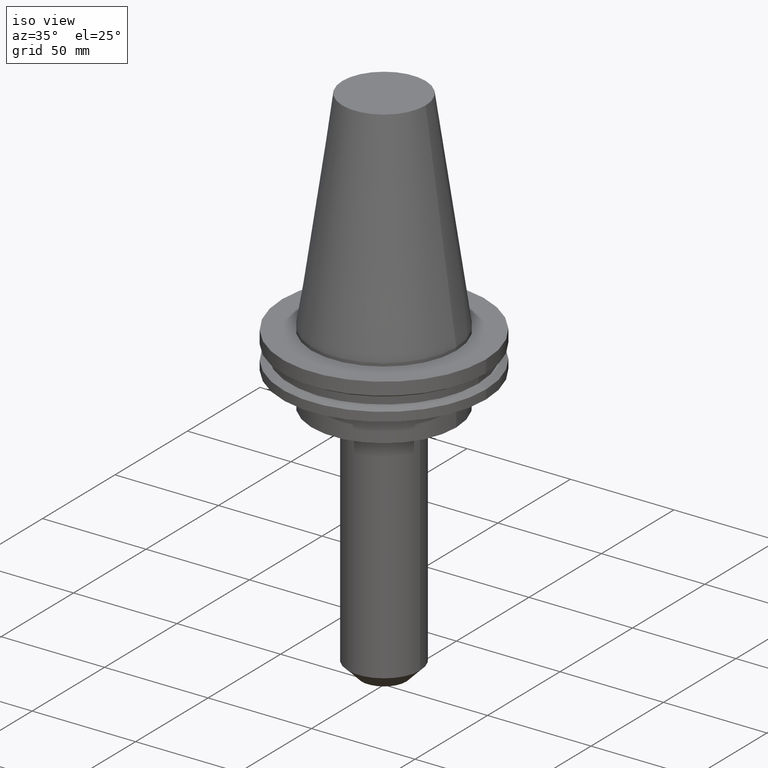
[diagram: clean part render]
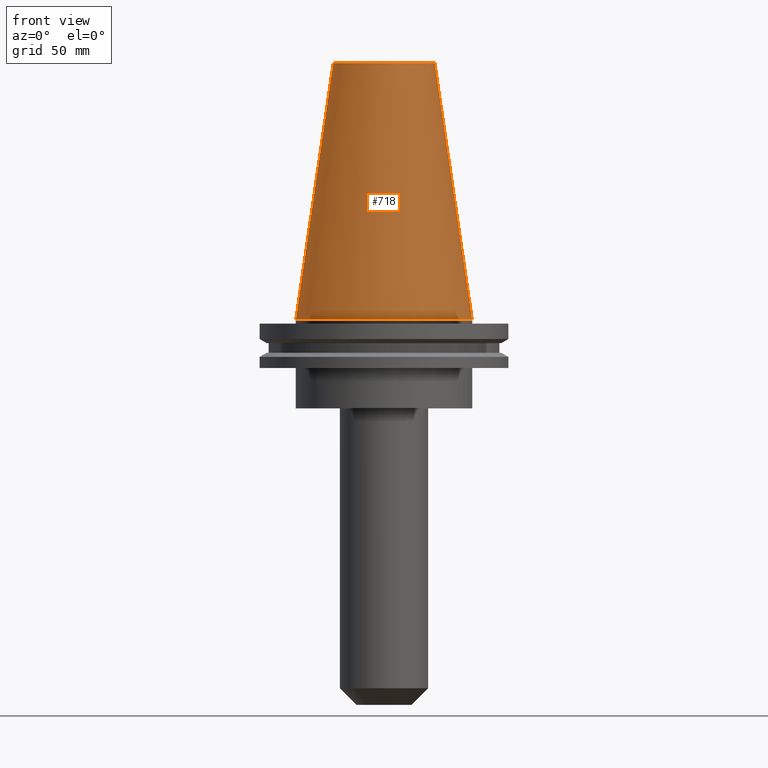
[diagram: tour spotlight — one face highlighted and labeled with its STEP entity id]
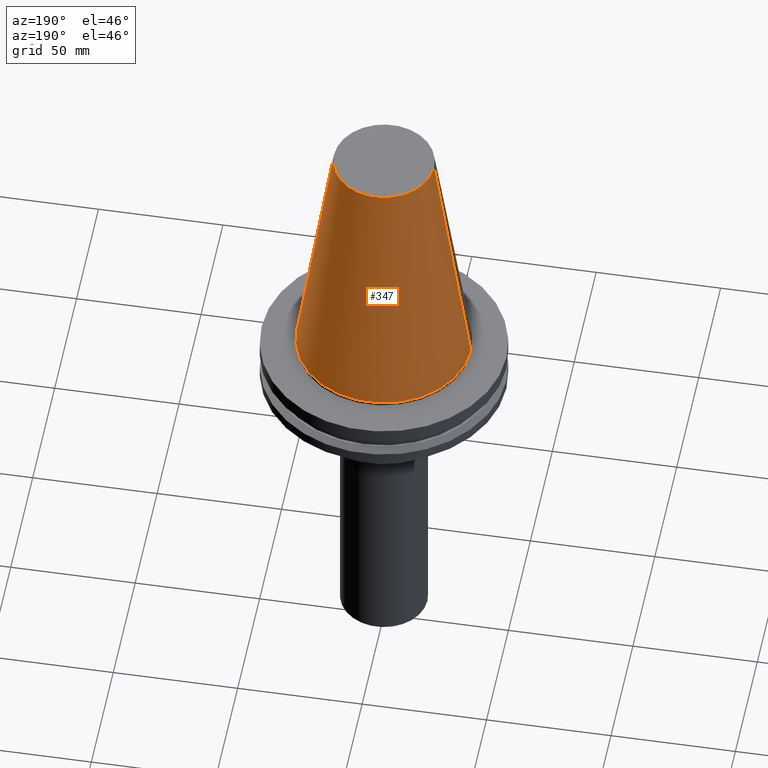
[diagram: tour spotlight — one face highlighted and labeled with its STEP entity id]
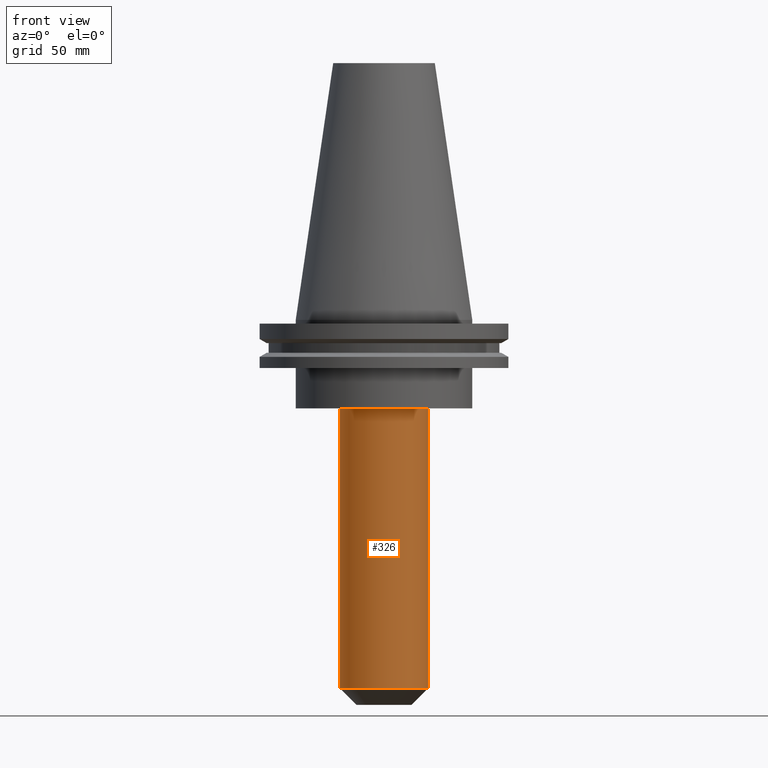
[diagram: tour spotlight — one face highlighted and labeled with its STEP entity id]
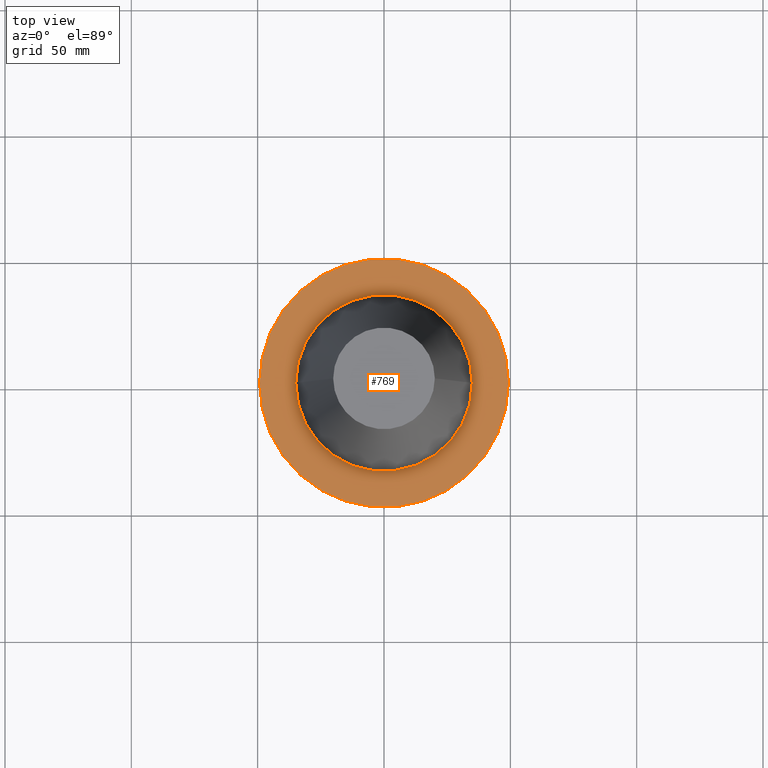
[diagram: tour spotlight — one face highlighted and labeled with its STEP entity id]
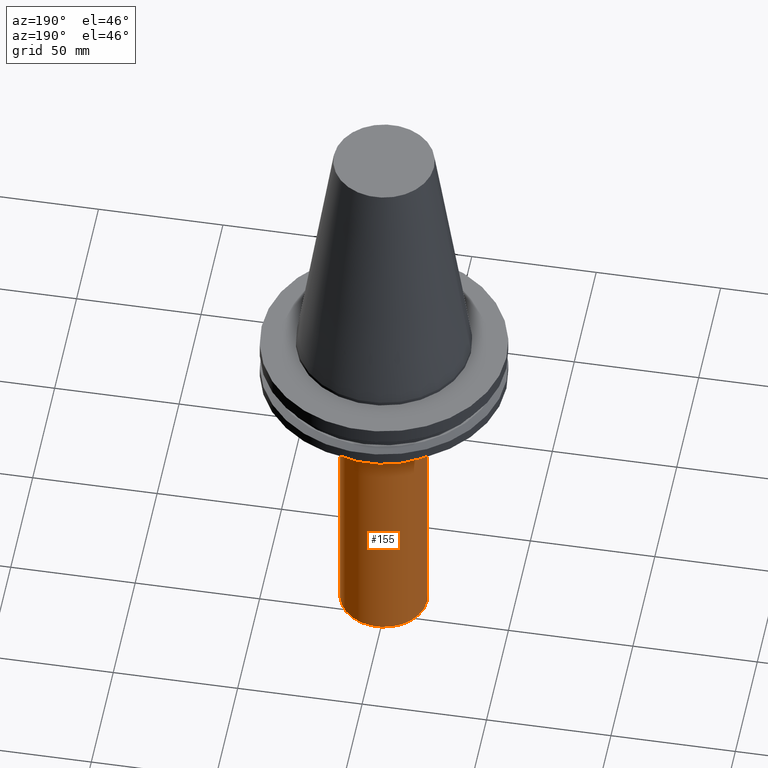
[diagram: tour spotlight — one face highlighted and labeled with its STEP entity id]
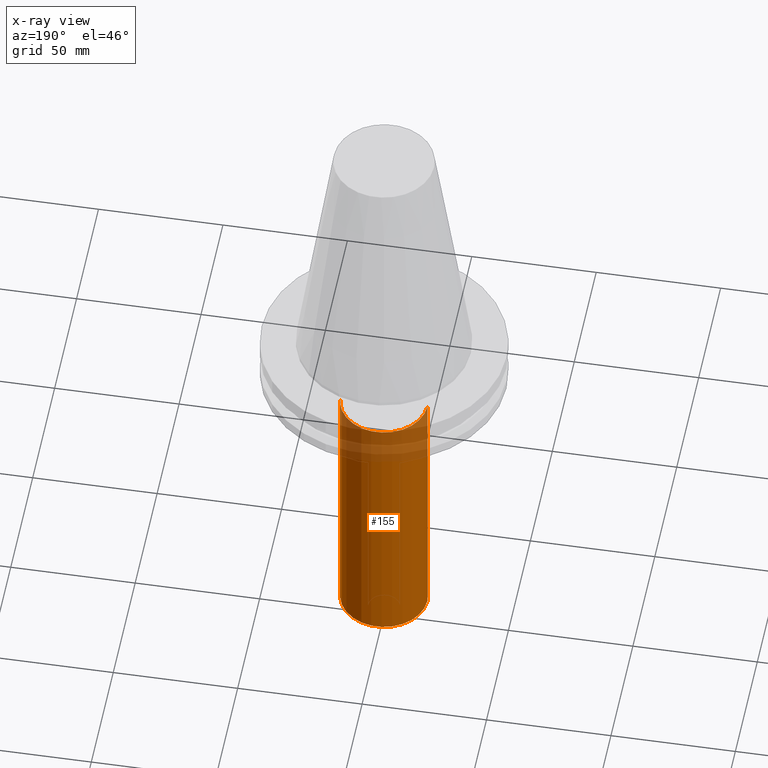
[diagram: x-ray of the same camera — body ghosted, this tour face saturated]
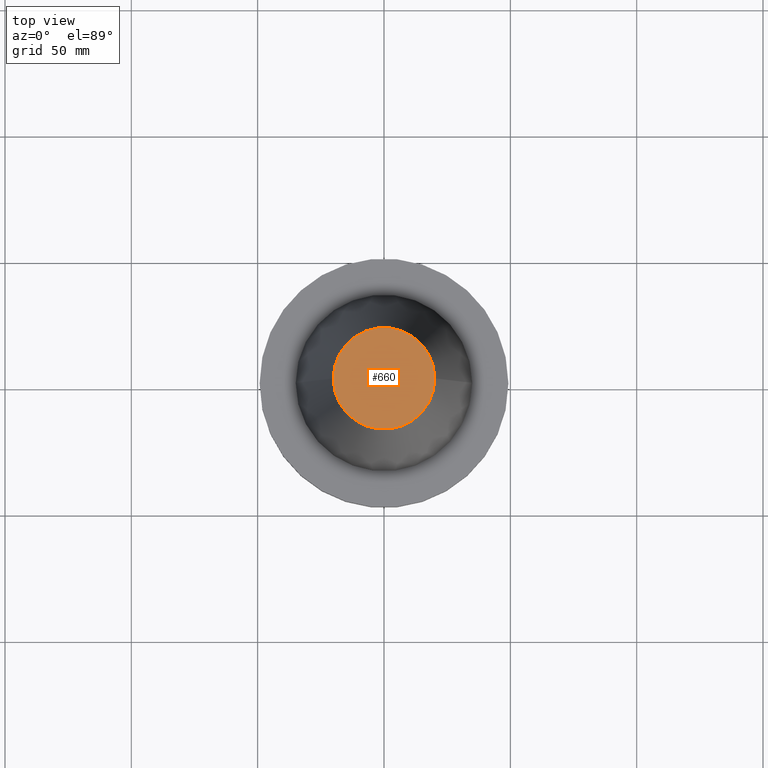
[diagram: tour spotlight — one face highlighted and labeled with its STEP entity id]
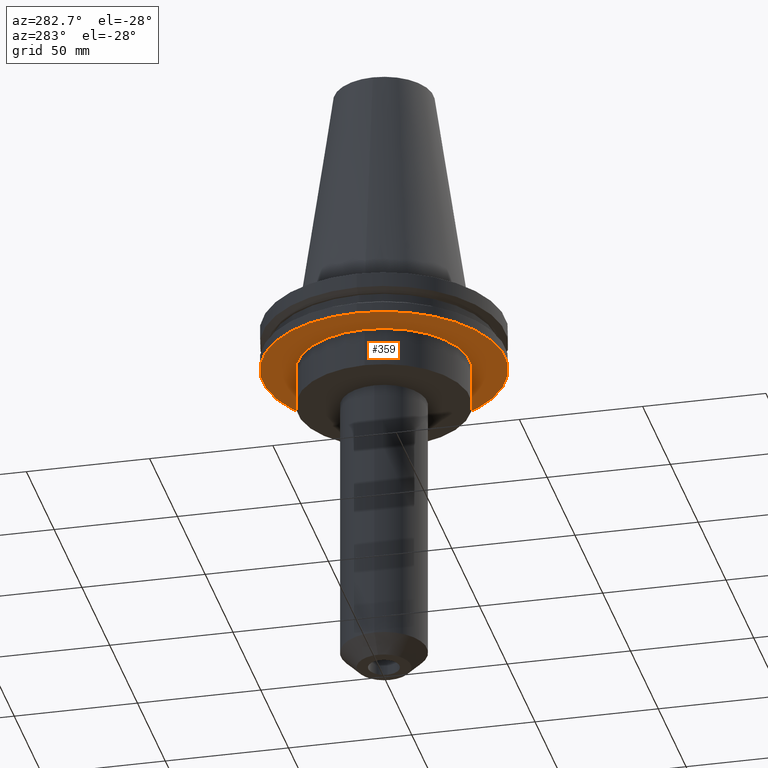
[diagram: tour spotlight — one face highlighted and labeled with its STEP entity id]
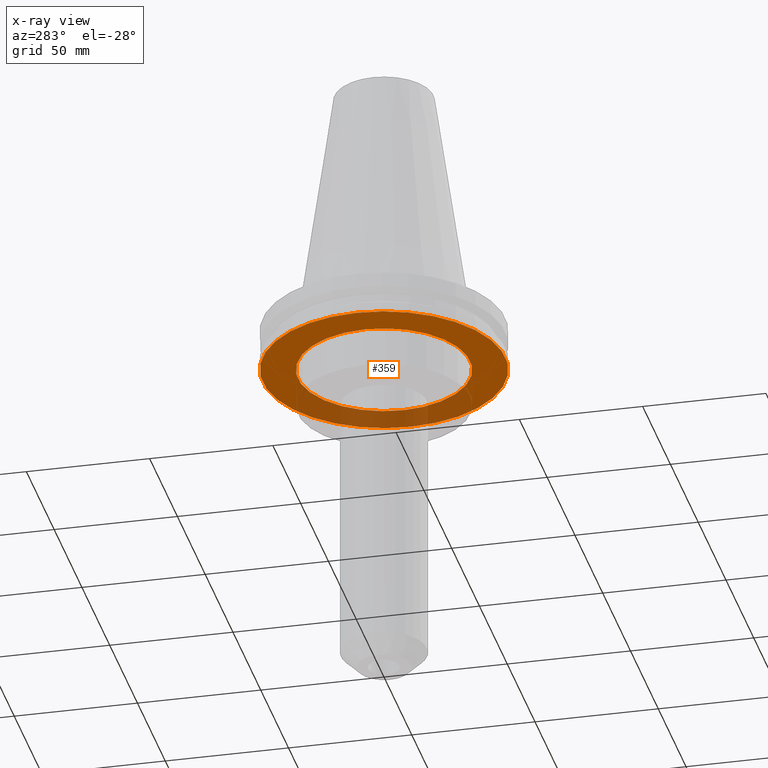
[diagram: x-ray of the same camera — body ghosted, this tour face saturated]
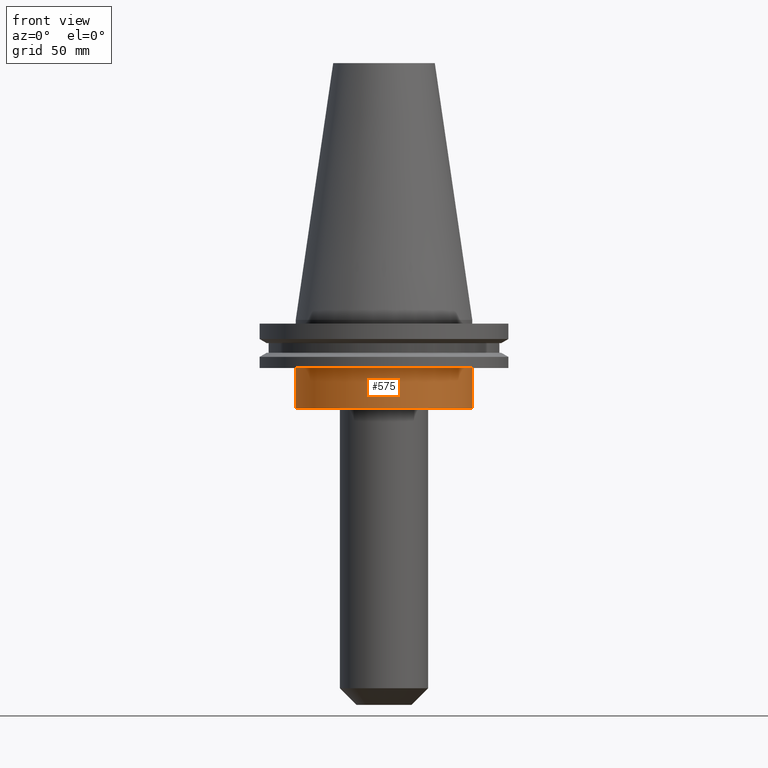
[diagram: tour spotlight — one face highlighted and labeled with its STEP entity id]
A machine part: a face-by-face anatomy tour. The part has 30 B-rep faces; the first image is the clean iso view, then the 8 largest visible faces are spotlighted one at a time (largest first), each with its STEP entity span.

Face 1 — front view, entity #718. In plain terms, the highlighted conical surface has half-angle 8.297 deg.
Definition (entity closure, byte-faithful):
#5 = EDGE_CURVE ( 'NONE', #598, #535, #28, .T. ) ;
#21 = EDGE_LOOP ( 'NONE', ( #626, #188, #622, #30 ) ) ;
#28 = CIRCLE ( 'NONE', #465, 34.92499999999999005 ) ;
#30 = ORIENTED_EDGE ( 'NONE', *, *, #5, .T. ) ;
#101 = CARTESIAN_POINT ( 'NONE',  ( -34.92499999999999005, 0.000000000000000000, 0.000000000000000000 ) ) ;
#118 = AXIS2_PLACEMENT_3D ( 'NONE', #601, #216, #352 ) ;
#139 = VERTEX_POINT ( 'NONE', #638 ) ;
#188 = ORIENTED_EDGE ( 'NONE', *, *, #396, .F. ) ;
#190 = CARTESIAN_POINT ( 'NONE',  ( 0.000000000000000000, 0.000000000000000000, 0.000000000000000000 ) ) ;
#216 = DIRECTION ( 'NONE',  ( -0.000000000000000000, -0.000000000000000000, 1.000000000000000000 ) ) ;
#223 = CARTESIAN_POINT ( 'NONE',  ( 34.92499999999999005, 4.277078946022130098E-15, 0.000000000000000000 ) ) ;
#250 = DIRECTION ( 'NONE',  ( 0.1443082272672999988, 1.767266086135277066E-17, -0.9895327864921755756 ) ) ;
#257 = LINE ( 'NONE', #515, #371 ) ;
#295 = CARTESIAN_POINT ( 'NONE',  ( -20.10819343178871321, 0.000000000000000000, 101.5999999999999801 ) ) ;
#349 = DIRECTION ( 'NONE',  ( 1.000000000000000000, 0.000000000000000000, 0.000000000000000000 ) ) ;
#352 = DIRECTION ( 'NONE',  ( 1.000000000000000000, 0.000000000000000000, 0.000000000000000000 ) ) ;
#371 = VECTOR ( 'NONE', #250, 999.9999999999998863 ) ;
#386 = CIRCLE ( 'NONE', #118, 20.10819343178871321 ) ;
#396 = EDGE_CURVE ( 'NONE', #592, #139, #386, .T. ) ;
#428 = DIRECTION ( 'NONE',  ( -0.000000000000000000, -0.000000000000000000, 1.000000000000000000 ) ) ;
#432 = DIRECTION ( 'NONE',  ( -0.1443082272672999988, 0.000000000000000000, -0.9895327864921755756 ) ) ;
#465 = AXIS2_PLACEMENT_3D ( 'NONE', #554, #428, #349 ) ;
#515 = CARTESIAN_POINT ( 'NONE',  ( 34.92499999999999005, 4.277078946022130098E-15, 0.000000000000000000 ) ) ;
#526 = VECTOR ( 'NONE', #432, 999.9999999999998863 ) ;
#535 = VERTEX_POINT ( 'NONE', #223 ) ;
#554 = CARTESIAN_POINT ( 'NONE',  ( 0.000000000000000000, 0.000000000000000000, 0.000000000000000000 ) ) ;
#571 = EDGE_CURVE ( 'NONE', #592, #598, #831, .T. ) ;
#592 = VERTEX_POINT ( 'NONE', #295 ) ;
#598 = VERTEX_POINT ( 'NONE', #823 ) ;
#601 = CARTESIAN_POINT ( 'NONE',  ( 0.000000000000000000, 0.000000000000000000, 101.5999999999999801 ) ) ;
#613 = CONICAL_SURFACE ( 'NONE', #821, 34.92499999999999005, 0.1448138465474119452 ) ;
#622 = ORIENTED_EDGE ( 'NONE', *, *, #571, .T. ) ;
#626 = ORIENTED_EDGE ( 'NONE', *, *, #726, .F. ) ;
#638 = CARTESIAN_POINT ( 'NONE',  ( 20.10819343178871321, 3.369811209154858606E-15, 101.5999999999999801 ) ) ;
#649 = DIRECTION ( 'NONE',  ( -1.000000000000000000, 0.000000000000000000, 0.000000000000000000 ) ) ;
#652 = FACE_OUTER_BOUND ( 'NONE', #21, .T. ) ;
#718 = ADVANCED_FACE ( 'NONE', ( #652 ), #613, .T. ) ;
#726 = EDGE_CURVE ( 'NONE', #139, #535, #257, .T. ) ;
#784 = DIRECTION ( 'NONE',  ( 0.000000000000000000, 0.000000000000000000, -1.000000000000000000 ) ) ;
#821 = AXIS2_PLACEMENT_3D ( 'NONE', #190, #784, #649 ) ;
#823 = CARTESIAN_POINT ( 'NONE',  ( -34.92499999999999005, 0.000000000000000000, 0.000000000000000000 ) ) ;
#831 = LINE ( 'NONE', #101, #526 ) ;

Face 2 — auxiliary view, entity #347. In plain terms, the highlighted conical surface has half-angle 8.297 deg.
Definition (entity closure, byte-faithful):
#2 = ORIENTED_EDGE ( 'NONE', *, *, #571, .F. ) ;
#95 = CIRCLE ( 'NONE', #355, 20.10819343178871321 ) ;
#101 = CARTESIAN_POINT ( 'NONE',  ( -34.92499999999999005, 0.000000000000000000, 0.000000000000000000 ) ) ;
#125 = DIRECTION ( 'NONE',  ( -0.000000000000000000, -0.000000000000000000, 1.000000000000000000 ) ) ;
#127 = CARTESIAN_POINT ( 'NONE',  ( 0.000000000000000000, 0.000000000000000000, 0.000000000000000000 ) ) ;
#139 = VERTEX_POINT ( 'NONE', #638 ) ;
#199 = DIRECTION ( 'NONE',  ( -1.000000000000000000, 0.000000000000000000, 0.000000000000000000 ) ) ;
#223 = CARTESIAN_POINT ( 'NONE',  ( 34.92499999999999005, 4.277078946022130098E-15, 0.000000000000000000 ) ) ;
#250 = DIRECTION ( 'NONE',  ( 0.1443082272672999988, 1.767266086135277066E-17, -0.9895327864921755756 ) ) ;
#253 = DIRECTION ( 'NONE',  ( -0.000000000000000000, -0.000000000000000000, 1.000000000000000000 ) ) ;
#257 = LINE ( 'NONE', #515, #371 ) ;
#295 = CARTESIAN_POINT ( 'NONE',  ( -20.10819343178871321, 0.000000000000000000, 101.5999999999999801 ) ) ;
#310 = CONICAL_SURFACE ( 'NONE', #468, 34.92499999999999005, 0.1448138465474119452 ) ;
#327 = AXIS2_PLACEMENT_3D ( 'NONE', #790, #253, #778 ) ;
#335 = EDGE_CURVE ( 'NONE', #535, #598, #755, .T. ) ;
#337 = ORIENTED_EDGE ( 'NONE', *, *, #335, .T. ) ;
#344 = EDGE_LOOP ( 'NONE', ( #648, #735, #337, #2 ) ) ;
#347 = ADVANCED_FACE ( 'NONE', ( #708 ), #310, .T. ) ;
#355 = AXIS2_PLACEMENT_3D ( 'NONE', #640, #125, #588 ) ;
#371 = VECTOR ( 'NONE', #250, 999.9999999999998863 ) ;
#385 = DIRECTION ( 'NONE',  ( 0.000000000000000000, 0.000000000000000000, -1.000000000000000000 ) ) ;
#432 = DIRECTION ( 'NONE',  ( -0.1443082272672999988, 0.000000000000000000, -0.9895327864921755756 ) ) ;
#468 = AXIS2_PLACEMENT_3D ( 'NONE', #127, #385, #199 ) ;
#515 = CARTESIAN_POINT ( 'NONE',  ( 34.92499999999999005, 4.277078946022130098E-15, 0.000000000000000000 ) ) ;
#526 = VECTOR ( 'NONE', #432, 999.9999999999998863 ) ;
#535 = VERTEX_POINT ( 'NONE', #223 ) ;
#571 = EDGE_CURVE ( 'NONE', #592, #598, #831, .T. ) ;
#588 = DIRECTION ( 'NONE',  ( 1.000000000000000000, 0.000000000000000000, 0.000000000000000000 ) ) ;
#592 = VERTEX_POINT ( 'NONE', #295 ) ;
#598 = VERTEX_POINT ( 'NONE', #823 ) ;
#638 = CARTESIAN_POINT ( 'NONE',  ( 20.10819343178871321, 3.369811209154858606E-15, 101.5999999999999801 ) ) ;
#640 = CARTESIAN_POINT ( 'NONE',  ( 0.000000000000000000, 0.000000000000000000, 101.5999999999999801 ) ) ;
#648 = ORIENTED_EDGE ( 'NONE', *, *, #788, .F. ) ;
#708 = FACE_OUTER_BOUND ( 'NONE', #344, .T. ) ;
#726 = EDGE_CURVE ( 'NONE', #139, #535, #257, .T. ) ;
#735 = ORIENTED_EDGE ( 'NONE', *, *, #726, .T. ) ;
#755 = CIRCLE ( 'NONE', #327, 34.92499999999999005 ) ;
#778 = DIRECTION ( 'NONE',  ( 1.000000000000000000, 0.000000000000000000, 0.000000000000000000 ) ) ;
#788 = EDGE_CURVE ( 'NONE', #139, #592, #95, .T. ) ;
#790 = CARTESIAN_POINT ( 'NONE',  ( 0.000000000000000000, 0.000000000000000000, 0.000000000000000000 ) ) ;
#823 = CARTESIAN_POINT ( 'NONE',  ( -34.92499999999999005, 0.000000000000000000, 0.000000000000000000 ) ) ;
#831 = LINE ( 'NONE', #101, #526 ) ;

Face 3 — front view, entity #326. In plain terms, the highlighted cylindrical surface (partial cylindrical patch) has radius 17.465 mm, axis along (-0, -0, 1).
Definition (entity closure, byte-faithful):
#29 = AXIS2_PLACEMENT_3D ( 'NONE', #719, #849, #532 ) ;
#50 = CARTESIAN_POINT ( 'NONE',  ( -17.46499999999999986, 2.138845634710852534E-15, 0.000000000000000000 ) ) ;
#74 = EDGE_CURVE ( 'NONE', #280, #475, #433, .T. ) ;
#160 = VERTEX_POINT ( 'NONE', #172 ) ;
#170 = DIRECTION ( 'NONE',  ( -0.000000000000000000, -0.000000000000000000, 1.000000000000000000 ) ) ;
#172 = CARTESIAN_POINT ( 'NONE',  ( -17.46499999999999986, 2.138845634710852534E-15, -35.04999999999999716 ) ) ;
#205 = EDGE_CURVE ( 'NONE', #844, #160, #705, .T. ) ;
#208 = ORIENTED_EDGE ( 'NONE', *, *, #302, .T. ) ;
#259 = CYLINDRICAL_SURFACE ( 'NONE', #29, 17.46499999999999986 ) ;
#266 = AXIS2_PLACEMENT_3D ( 'NONE', #274, #745, #684 ) ;
#272 = CARTESIAN_POINT ( 'NONE',  ( -17.46500000000000341, 2.138845634710852928E-15, -145.8000000000000114 ) ) ;
#274 = CARTESIAN_POINT ( 'NONE',  ( 0.000000000000000000, 0.000000000000000000, -145.8000000000000114 ) ) ;
#279 = CARTESIAN_POINT ( 'NONE',  ( 17.46499999999999986, 0.000000000000000000, -35.04999999999999716 ) ) ;
#280 = VERTEX_POINT ( 'NONE', #582 ) ;
#302 = EDGE_CURVE ( 'NONE', #475, #160, #781, .T. ) ;
#311 = VECTOR ( 'NONE', #170, 1000.000000000000000 ) ;
#326 = ADVANCED_FACE ( 'NONE', ( #520 ), #259, .T. ) ;
#334 = DIRECTION ( 'NONE',  ( 0.000000000000000000, 0.000000000000000000, -1.000000000000000000 ) ) ;
#382 = EDGE_CURVE ( 'NONE', #844, #280, #645, .T. ) ;
#415 = AXIS2_PLACEMENT_3D ( 'NONE', #782, #334, #593 ) ;
#433 = LINE ( 'NONE', #504, #618 ) ;
#475 = VERTEX_POINT ( 'NONE', #279 ) ;
#504 = CARTESIAN_POINT ( 'NONE',  ( 17.46499999999999986, 0.000000000000000000, 0.000000000000000000 ) ) ;
#520 = FACE_OUTER_BOUND ( 'NONE', #559, .T. ) ;
#532 = DIRECTION ( 'NONE',  ( 1.000000000000000000, 0.000000000000000000, 0.000000000000000000 ) ) ;
#559 = EDGE_LOOP ( 'NONE', ( #669, #594, #794, #208 ) ) ;
#582 = CARTESIAN_POINT ( 'NONE',  ( 17.46500000000000341, 0.000000000000000000, -145.8000000000000114 ) ) ;
#593 = DIRECTION ( 'NONE',  ( 1.000000000000000000, 0.000000000000000000, 0.000000000000000000 ) ) ;
#594 = ORIENTED_EDGE ( 'NONE', *, *, #382, .T. ) ;
#618 = VECTOR ( 'NONE', #840, 1000.000000000000000 ) ;
#645 = CIRCLE ( 'NONE', #266, 17.46500000000000341 ) ;
#669 = ORIENTED_EDGE ( 'NONE', *, *, #205, .F. ) ;
#684 = DIRECTION ( 'NONE',  ( 1.000000000000000000, 0.000000000000000000, 0.000000000000000000 ) ) ;
#705 = LINE ( 'NONE', #50, #311 ) ;
#719 = CARTESIAN_POINT ( 'NONE',  ( 0.000000000000000000, 0.000000000000000000, 0.000000000000000000 ) ) ;
#745 = DIRECTION ( 'NONE',  ( -0.000000000000000000, -0.000000000000000000, 1.000000000000000000 ) ) ;
#781 = CIRCLE ( 'NONE', #415, 17.46499999999999986 ) ;
#782 = CARTESIAN_POINT ( 'NONE',  ( 0.000000000000000000, 0.000000000000000000, -35.04999999999999716 ) ) ;
#794 = ORIENTED_EDGE ( 'NONE', *, *, #74, .T. ) ;
#840 = DIRECTION ( 'NONE',  ( -0.000000000000000000, -0.000000000000000000, 1.000000000000000000 ) ) ;
#844 = VERTEX_POINT ( 'NONE', #272 ) ;
#849 = DIRECTION ( 'NONE',  ( -0.000000000000000000, -0.000000000000000000, 1.000000000000000000 ) ) ;

Face 4 — top view, entity #769. In plain terms, the highlighted planar face has unit normal (0, 0, -1).
Definition (entity closure, byte-faithful):
#1 = CARTESIAN_POINT ( 'NONE',  ( 0.000000000000000000, 49.21499999999999631, -1.499999999999992895 ) ) ;
#19 = CARTESIAN_POINT ( 'NONE',  ( -34.92499999999999005, 4.277078946022130098E-15, -1.499999999999987566 ) ) ;
#23 = VERTEX_POINT ( 'NONE', #19 ) ;
#57 = DIRECTION ( 'NONE',  ( -1.000000000000000000, 0.000000000000000000, -0.000000000000000000 ) ) ;
#69 = ORIENTED_EDGE ( 'NONE', *, *, #243, .F. ) ;
#71 = EDGE_LOOP ( 'NONE', ( #548, #557 ) ) ;
#80 = ORIENTED_EDGE ( 'NONE', *, *, #313, .F. ) ;
#117 = CARTESIAN_POINT ( 'NONE',  ( 34.92499999999999005, 0.000000000000000000, -1.499999999999987566 ) ) ;
#119 = CIRCLE ( 'NONE', #603, 34.92499999999999005 ) ;
#135 = AXIS2_PLACEMENT_3D ( 'NONE', #379, #642, #437 ) ;
#192 = DIRECTION ( 'NONE',  ( 1.000000000000000000, 0.000000000000000000, 0.000000000000000000 ) ) ;
#193 = DIRECTION ( 'NONE',  ( -0.000000000000000000, -0.000000000000000000, 1.000000000000000000 ) ) ;
#198 = VERTEX_POINT ( 'NONE', #446 ) ;
#212 = EDGE_CURVE ( 'NONE', #198, #667, #796, .T. ) ;
#243 = EDGE_CURVE ( 'NONE', #23, #251, #119, .T. ) ;
#247 = CARTESIAN_POINT ( 'NONE',  ( 0.000000000000000000, 0.000000000000000000, -1.499999999999987566 ) ) ;
#251 = VERTEX_POINT ( 'NONE', #117 ) ;
#313 = EDGE_CURVE ( 'NONE', #251, #23, #851, .T. ) ;
#316 = DIRECTION ( 'NONE',  ( -0.000000000000000000, -0.000000000000000000, 1.000000000000000000 ) ) ;
#328 = AXIS2_PLACEMENT_3D ( 'NONE', #247, #517, #192 ) ;
#341 = AXIS2_PLACEMENT_3D ( 'NONE', #1, #787, #57 ) ;
#379 = CARTESIAN_POINT ( 'NONE',  ( 0.000000000000000000, 0.000000000000000000, -1.499999999999987566 ) ) ;
#437 = DIRECTION ( 'NONE',  ( 1.000000000000000000, 0.000000000000000000, 0.000000000000000000 ) ) ;
#446 = CARTESIAN_POINT ( 'NONE',  ( -49.21499999999999631, 6.027099222003697826E-15, -1.499999999999987566 ) ) ;
#451 = FACE_BOUND ( 'NONE', #804, .T. ) ;
#456 = CARTESIAN_POINT ( 'NONE',  ( 0.000000000000000000, 0.000000000000000000, -1.499999999999987566 ) ) ;
#517 = DIRECTION ( 'NONE',  ( -0.000000000000000000, -0.000000000000000000, 1.000000000000000000 ) ) ;
#519 = CARTESIAN_POINT ( 'NONE',  ( 49.21499999999999631, 0.000000000000000000, -1.499999999999987566 ) ) ;
#548 = ORIENTED_EDGE ( 'NONE', *, *, #736, .T. ) ;
#557 = ORIENTED_EDGE ( 'NONE', *, *, #212, .T. ) ;
#563 = AXIS2_PLACEMENT_3D ( 'NONE', #456, #193, #644 ) ;
#603 = AXIS2_PLACEMENT_3D ( 'NONE', #651, #316, #774 ) ;
#642 = DIRECTION ( 'NONE',  ( -0.000000000000000000, -0.000000000000000000, 1.000000000000000000 ) ) ;
#644 = DIRECTION ( 'NONE',  ( 1.000000000000000000, 0.000000000000000000, 0.000000000000000000 ) ) ;
#651 = CARTESIAN_POINT ( 'NONE',  ( 0.000000000000000000, 0.000000000000000000, -1.499999999999987566 ) ) ;
#656 = FACE_OUTER_BOUND ( 'NONE', #71, .T. ) ;
#667 = VERTEX_POINT ( 'NONE', #519 ) ;
#714 = PLANE ( 'NONE',  #341 ) ;
#736 = EDGE_CURVE ( 'NONE', #667, #198, #847, .T. ) ;
#769 = ADVANCED_FACE ( 'NONE', ( #451, #656 ), #714, .F. ) ;
#774 = DIRECTION ( 'NONE',  ( 1.000000000000000000, 0.000000000000000000, 0.000000000000000000 ) ) ;
#787 = DIRECTION ( 'NONE',  ( 0.000000000000000000, 0.000000000000000000, -1.000000000000000000 ) ) ;
#796 = CIRCLE ( 'NONE', #135, 49.21499999999999631 ) ;
#804 = EDGE_LOOP ( 'NONE', ( #80, #69 ) ) ;
#847 = CIRCLE ( 'NONE', #563, 49.21499999999999631 ) ;
#851 = CIRCLE ( 'NONE', #328, 34.92499999999999005 ) ;

Face 5 — auxiliary view, entity #155. An x-ray twin of the same camera follows (body ghosted, this face saturated) — the face is partly hidden behind the body. In plain terms, the highlighted cylindrical surface (partial cylindrical patch) has radius 17.465 mm, axis along (-0, -0, 1).
Definition (entity closure, byte-faithful):
#14 = ORIENTED_EDGE ( 'NONE', *, *, #178, .T. ) ;
#46 = CARTESIAN_POINT ( 'NONE',  ( 0.000000000000000000, 0.000000000000000000, -35.04999999999999716 ) ) ;
#50 = CARTESIAN_POINT ( 'NONE',  ( -17.46499999999999986, 2.138845634710852534E-15, 0.000000000000000000 ) ) ;
#74 = EDGE_CURVE ( 'NONE', #280, #475, #433, .T. ) ;
#132 = ORIENTED_EDGE ( 'NONE', *, *, #205, .T. ) ;
#136 = ORIENTED_EDGE ( 'NONE', *, *, #74, .F. ) ;
#145 = EDGE_LOOP ( 'NONE', ( #852, #132, #14, #136 ) ) ;
#155 = ADVANCED_FACE ( 'NONE', ( #695 ), #441, .T. ) ;
#160 = VERTEX_POINT ( 'NONE', #172 ) ;
#167 = AXIS2_PLACEMENT_3D ( 'NONE', #230, #634, #770 ) ;
#170 = DIRECTION ( 'NONE',  ( -0.000000000000000000, -0.000000000000000000, 1.000000000000000000 ) ) ;
#172 = CARTESIAN_POINT ( 'NONE',  ( -17.46499999999999986, 2.138845634710852534E-15, -35.04999999999999716 ) ) ;
#174 = EDGE_CURVE ( 'NONE', #280, #844, #632, .T. ) ;
#176 = CIRCLE ( 'NONE', #202, 17.46499999999999986 ) ;
#178 = EDGE_CURVE ( 'NONE', #160, #475, #176, .T. ) ;
#202 = AXIS2_PLACEMENT_3D ( 'NONE', #46, #566, #513 ) ;
#205 = EDGE_CURVE ( 'NONE', #844, #160, #705, .T. ) ;
#230 = CARTESIAN_POINT ( 'NONE',  ( 0.000000000000000000, 0.000000000000000000, -145.8000000000000114 ) ) ;
#272 = CARTESIAN_POINT ( 'NONE',  ( -17.46500000000000341, 2.138845634710852928E-15, -145.8000000000000114 ) ) ;
#279 = CARTESIAN_POINT ( 'NONE',  ( 17.46499999999999986, 0.000000000000000000, -35.04999999999999716 ) ) ;
#280 = VERTEX_POINT ( 'NONE', #582 ) ;
#311 = VECTOR ( 'NONE', #170, 1000.000000000000000 ) ;
#433 = LINE ( 'NONE', #504, #618 ) ;
#441 = CYLINDRICAL_SURFACE ( 'NONE', #577, 17.46499999999999986 ) ;
#475 = VERTEX_POINT ( 'NONE', #279 ) ;
#504 = CARTESIAN_POINT ( 'NONE',  ( 17.46499999999999986, 0.000000000000000000, 0.000000000000000000 ) ) ;
#513 = DIRECTION ( 'NONE',  ( 1.000000000000000000, 0.000000000000000000, 0.000000000000000000 ) ) ;
#566 = DIRECTION ( 'NONE',  ( 0.000000000000000000, 0.000000000000000000, -1.000000000000000000 ) ) ;
#568 = CARTESIAN_POINT ( 'NONE',  ( 0.000000000000000000, 0.000000000000000000, 0.000000000000000000 ) ) ;
#577 = AXIS2_PLACEMENT_3D ( 'NONE', #568, #766, #759 ) ;
#582 = CARTESIAN_POINT ( 'NONE',  ( 17.46500000000000341, 0.000000000000000000, -145.8000000000000114 ) ) ;
#618 = VECTOR ( 'NONE', #840, 1000.000000000000000 ) ;
#632 = CIRCLE ( 'NONE', #167, 17.46500000000000341 ) ;
#634 = DIRECTION ( 'NONE',  ( -0.000000000000000000, -0.000000000000000000, 1.000000000000000000 ) ) ;
#695 = FACE_OUTER_BOUND ( 'NONE', #145, .T. ) ;
#705 = LINE ( 'NONE', #50, #311 ) ;
#759 = DIRECTION ( 'NONE',  ( 1.000000000000000000, 0.000000000000000000, 0.000000000000000000 ) ) ;
#766 = DIRECTION ( 'NONE',  ( -0.000000000000000000, -0.000000000000000000, 1.000000000000000000 ) ) ;
#770 = DIRECTION ( 'NONE',  ( 1.000000000000000000, 0.000000000000000000, 0.000000000000000000 ) ) ;
#840 = DIRECTION ( 'NONE',  ( -0.000000000000000000, -0.000000000000000000, 1.000000000000000000 ) ) ;
#844 = VERTEX_POINT ( 'NONE', #272 ) ;
#852 = ORIENTED_EDGE ( 'NONE', *, *, #174, .T. ) ;

Face 6 — top view, entity #660. In plain terms, the highlighted planar face has unit normal (0, 0, -1).
Definition (entity closure, byte-faithful):
#95 = CIRCLE ( 'NONE', #355, 20.10819343178871321 ) ;
#106 = DIRECTION ( 'NONE',  ( 0.000000000000000000, 0.000000000000000000, -1.000000000000000000 ) ) ;
#118 = AXIS2_PLACEMENT_3D ( 'NONE', #601, #216, #352 ) ;
#125 = DIRECTION ( 'NONE',  ( -0.000000000000000000, -0.000000000000000000, 1.000000000000000000 ) ) ;
#139 = VERTEX_POINT ( 'NONE', #638 ) ;
#154 = ORIENTED_EDGE ( 'NONE', *, *, #396, .T. ) ;
#216 = DIRECTION ( 'NONE',  ( -0.000000000000000000, -0.000000000000000000, 1.000000000000000000 ) ) ;
#217 = ORIENTED_EDGE ( 'NONE', *, *, #788, .T. ) ;
#233 = AXIS2_PLACEMENT_3D ( 'NONE', #761, #106, #292 ) ;
#292 = DIRECTION ( 'NONE',  ( -1.000000000000000000, 0.000000000000000000, -0.000000000000000000 ) ) ;
#295 = CARTESIAN_POINT ( 'NONE',  ( -20.10819343178871321, 0.000000000000000000, 101.5999999999999801 ) ) ;
#300 = PLANE ( 'NONE',  #233 ) ;
#352 = DIRECTION ( 'NONE',  ( 1.000000000000000000, 0.000000000000000000, 0.000000000000000000 ) ) ;
#355 = AXIS2_PLACEMENT_3D ( 'NONE', #640, #125, #588 ) ;
#376 = FACE_OUTER_BOUND ( 'NONE', #391, .T. ) ;
#386 = CIRCLE ( 'NONE', #118, 20.10819343178871321 ) ;
#391 = EDGE_LOOP ( 'NONE', ( #154, #217 ) ) ;
#396 = EDGE_CURVE ( 'NONE', #592, #139, #386, .T. ) ;
#588 = DIRECTION ( 'NONE',  ( 1.000000000000000000, 0.000000000000000000, 0.000000000000000000 ) ) ;
#592 = VERTEX_POINT ( 'NONE', #295 ) ;
#601 = CARTESIAN_POINT ( 'NONE',  ( 0.000000000000000000, 0.000000000000000000, 101.5999999999999801 ) ) ;
#638 = CARTESIAN_POINT ( 'NONE',  ( 20.10819343178871321, 3.369811209154858606E-15, 101.5999999999999801 ) ) ;
#640 = CARTESIAN_POINT ( 'NONE',  ( 0.000000000000000000, 0.000000000000000000, 101.5999999999999801 ) ) ;
#660 = ADVANCED_FACE ( 'NONE', ( #376 ), #300, .F. ) ;
#761 = CARTESIAN_POINT ( 'NONE',  ( 0.000000000000000000, 20.10819343178871321, 101.5999999999999943 ) ) ;
#788 = EDGE_CURVE ( 'NONE', #139, #592, #95, .T. ) ;

Face 7 — auxiliary view, entity #359. An x-ray twin of the same camera follows (body ghosted, this face saturated) — the face is partly hidden behind the body. In plain terms, the highlighted planar face has unit normal (0, -0, 1).
Definition (entity closure, byte-faithful):
#44 = AXIS2_PLACEMENT_3D ( 'NONE', #390, #647, #55 ) ;
#52 = EDGE_CURVE ( 'NONE', #521, #130, #825, .T. ) ;
#55 = DIRECTION ( 'NONE',  ( 1.000000000000000000, 0.000000000000000000, 0.000000000000000000 ) ) ;
#66 = AXIS2_PLACEMENT_3D ( 'NONE', #605, #146, #558 ) ;
#67 = EDGE_LOOP ( 'NONE', ( #116, #270 ) ) ;
#116 = ORIENTED_EDGE ( 'NONE', *, *, #473, .T. ) ;
#130 = VERTEX_POINT ( 'NONE', #236 ) ;
#144 = CARTESIAN_POINT ( 'NONE',  ( 0.000000000000000000, 0.000000000000000000, -19.04999999999999716 ) ) ;
#146 = DIRECTION ( 'NONE',  ( -0.000000000000000000, -0.000000000000000000, 1.000000000000000000 ) ) ;
#162 = EDGE_CURVE ( 'NONE', #729, #710, #793, .T. ) ;
#173 = DIRECTION ( 'NONE',  ( 1.000000000000000000, 0.000000000000000000, 0.000000000000000000 ) ) ;
#209 = EDGE_LOOP ( 'NONE', ( #325, #518 ) ) ;
#236 = CARTESIAN_POINT ( 'NONE',  ( 49.21499999999998920, 0.000000000000000000, -19.04999999999999716 ) ) ;
#252 = AXIS2_PLACEMENT_3D ( 'NONE', #637, #378, #173 ) ;
#270 = ORIENTED_EDGE ( 'NONE', *, *, #162, .T. ) ;
#325 = ORIENTED_EDGE ( 'NONE', *, *, #639, .F. ) ;
#329 = CIRCLE ( 'NONE', #66, 34.92499999999999716 ) ;
#359 = ADVANCED_FACE ( 'NONE', ( #713, #724 ), #785, .F. ) ;
#378 = DIRECTION ( 'NONE',  ( -0.000000000000000000, -0.000000000000000000, 1.000000000000000000 ) ) ;
#389 = CIRCLE ( 'NONE', #252, 49.21499999999998920 ) ;
#390 = CARTESIAN_POINT ( 'NONE',  ( 0.000000000000000000, 49.21499999999998920, -19.04999999999999716 ) ) ;
#473 = EDGE_CURVE ( 'NONE', #710, #729, #329, .T. ) ;
#518 = ORIENTED_EDGE ( 'NONE', *, *, #52, .F. ) ;
#521 = VERTEX_POINT ( 'NONE', #693 ) ;
#558 = DIRECTION ( 'NONE',  ( 1.000000000000000000, 0.000000000000000000, 0.000000000000000000 ) ) ;
#561 = DIRECTION ( 'NONE',  ( -0.000000000000000000, -0.000000000000000000, 1.000000000000000000 ) ) ;
#570 = CARTESIAN_POINT ( 'NONE',  ( 0.000000000000000000, 0.000000000000000000, -19.04999999999999716 ) ) ;
#605 = CARTESIAN_POINT ( 'NONE',  ( 0.000000000000000000, 0.000000000000000000, -19.04999999999999716 ) ) ;
#637 = CARTESIAN_POINT ( 'NONE',  ( 0.000000000000000000, 0.000000000000000000, -19.04999999999999716 ) ) ;
#639 = EDGE_CURVE ( 'NONE', #130, #521, #389, .T. ) ;
#647 = DIRECTION ( 'NONE',  ( 0.000000000000000000, -0.000000000000000000, 1.000000000000000000 ) ) ;
#659 = AXIS2_PLACEMENT_3D ( 'NONE', #570, #824, #700 ) ;
#693 = CARTESIAN_POINT ( 'NONE',  ( -49.21499999999998920, 6.027099222003697037E-15, -19.04999999999999716 ) ) ;
#700 = DIRECTION ( 'NONE',  ( 1.000000000000000000, 0.000000000000000000, 0.000000000000000000 ) ) ;
#710 = VERTEX_POINT ( 'NONE', #850 ) ;
#712 = AXIS2_PLACEMENT_3D ( 'NONE', #144, #561, #820 ) ;
#713 = FACE_OUTER_BOUND ( 'NONE', #209, .T. ) ;
#722 = CARTESIAN_POINT ( 'NONE',  ( -34.92499999999999716, 4.277078946022130887E-15, -19.04999999999999716 ) ) ;
#724 = FACE_BOUND ( 'NONE', #67, .T. ) ;
#729 = VERTEX_POINT ( 'NONE', #722 ) ;
#785 = PLANE ( 'NONE',  #44 ) ;
#793 = CIRCLE ( 'NONE', #659, 34.92499999999999716 ) ;
#820 = DIRECTION ( 'NONE',  ( 1.000000000000000000, 0.000000000000000000, 0.000000000000000000 ) ) ;
#824 = DIRECTION ( 'NONE',  ( -0.000000000000000000, -0.000000000000000000, 1.000000000000000000 ) ) ;
#825 = CIRCLE ( 'NONE', #712, 49.21499999999998920 ) ;
#850 = CARTESIAN_POINT ( 'NONE',  ( 34.92499999999999716, 0.000000000000000000, -19.04999999999999716 ) ) ;

Face 8 — front view, entity #575. In plain terms, the highlighted cylindrical surface (partial cylindrical patch) has radius 34.925 mm, axis along (-0, -0, 1).
Definition (entity closure, byte-faithful):
#10 = AXIS2_PLACEMENT_3D ( 'NONE', #489, #363, #624 ) ;
#24 = EDGE_CURVE ( 'NONE', #264, #662, #538, .T. ) ;
#47 = DIRECTION ( 'NONE',  ( -0.000000000000000000, -0.000000000000000000, 1.000000000000000000 ) ) ;
#86 = VECTOR ( 'NONE', #834, 1000.000000000000000 ) ;
#92 = ORIENTED_EDGE ( 'NONE', *, *, #586, .F. ) ;
#134 = DIRECTION ( 'NONE',  ( -0.000000000000000000, -0.000000000000000000, 1.000000000000000000 ) ) ;
#142 = ORIENTED_EDGE ( 'NONE', *, *, #24, .T. ) ;
#162 = EDGE_CURVE ( 'NONE', #729, #710, #793, .T. ) ;
#177 = CARTESIAN_POINT ( 'NONE',  ( 0.000000000000000000, 0.000000000000000000, 101.5999999999999943 ) ) ;
#226 = CARTESIAN_POINT ( 'NONE',  ( -34.92499999999999716, 4.277078946022130887E-15, 101.5999999999999943 ) ) ;
#244 = ORIENTED_EDGE ( 'NONE', *, *, #162, .F. ) ;
#264 = VERTEX_POINT ( 'NONE', #663 ) ;
#288 = DIRECTION ( 'NONE',  ( 1.000000000000000000, 0.000000000000000000, 0.000000000000000000 ) ) ;
#308 = LINE ( 'NONE', #383, #550 ) ;
#331 = CARTESIAN_POINT ( 'NONE',  ( 34.92499999999999716, 0.000000000000000000, -35.04999999999999716 ) ) ;
#363 = DIRECTION ( 'NONE',  ( -0.000000000000000000, -0.000000000000000000, 1.000000000000000000 ) ) ;
#368 = LINE ( 'NONE', #226, #86 ) ;
#383 = CARTESIAN_POINT ( 'NONE',  ( 34.92499999999999716, 0.000000000000000000, 101.5999999999999943 ) ) ;
#401 = AXIS2_PLACEMENT_3D ( 'NONE', #177, #47, #288 ) ;
#444 = FACE_OUTER_BOUND ( 'NONE', #815, .T. ) ;
#489 = CARTESIAN_POINT ( 'NONE',  ( 0.000000000000000000, 0.000000000000000000, -35.04999999999999716 ) ) ;
#538 = CIRCLE ( 'NONE', #10, 34.92499999999999716 ) ;
#550 = VECTOR ( 'NONE', #134, 1000.000000000000000 ) ;
#570 = CARTESIAN_POINT ( 'NONE',  ( 0.000000000000000000, 0.000000000000000000, -19.04999999999999716 ) ) ;
#575 = ADVANCED_FACE ( 'NONE', ( #444 ), #630, .T. ) ;
#586 = EDGE_CURVE ( 'NONE', #264, #729, #368, .T. ) ;
#590 = ORIENTED_EDGE ( 'NONE', *, *, #732, .T. ) ;
#624 = DIRECTION ( 'NONE',  ( 1.000000000000000000, 0.000000000000000000, 0.000000000000000000 ) ) ;
#630 = CYLINDRICAL_SURFACE ( 'NONE', #401, 34.92499999999999716 ) ;
#659 = AXIS2_PLACEMENT_3D ( 'NONE', #570, #824, #700 ) ;
#662 = VERTEX_POINT ( 'NONE', #331 ) ;
#663 = CARTESIAN_POINT ( 'NONE',  ( -34.92499999999999716, 4.277078946022130887E-15, -35.04999999999999716 ) ) ;
#700 = DIRECTION ( 'NONE',  ( 1.000000000000000000, 0.000000000000000000, 0.000000000000000000 ) ) ;
#710 = VERTEX_POINT ( 'NONE', #850 ) ;
#722 = CARTESIAN_POINT ( 'NONE',  ( -34.92499999999999716, 4.277078946022130887E-15, -19.04999999999999716 ) ) ;
#729 = VERTEX_POINT ( 'NONE', #722 ) ;
#732 = EDGE_CURVE ( 'NONE', #662, #710, #308, .T. ) ;
#793 = CIRCLE ( 'NONE', #659, 34.92499999999999716 ) ;
#815 = EDGE_LOOP ( 'NONE', ( #92, #142, #590, #244 ) ) ;
#824 = DIRECTION ( 'NONE',  ( -0.000000000000000000, -0.000000000000000000, 1.000000000000000000 ) ) ;
#834 = DIRECTION ( 'NONE',  ( -0.000000000000000000, -0.000000000000000000, 1.000000000000000000 ) ) ;
#850 = CARTESIAN_POINT ( 'NONE',  ( 34.92499999999999716, 0.000000000000000000, -19.04999999999999716 ) ) ;